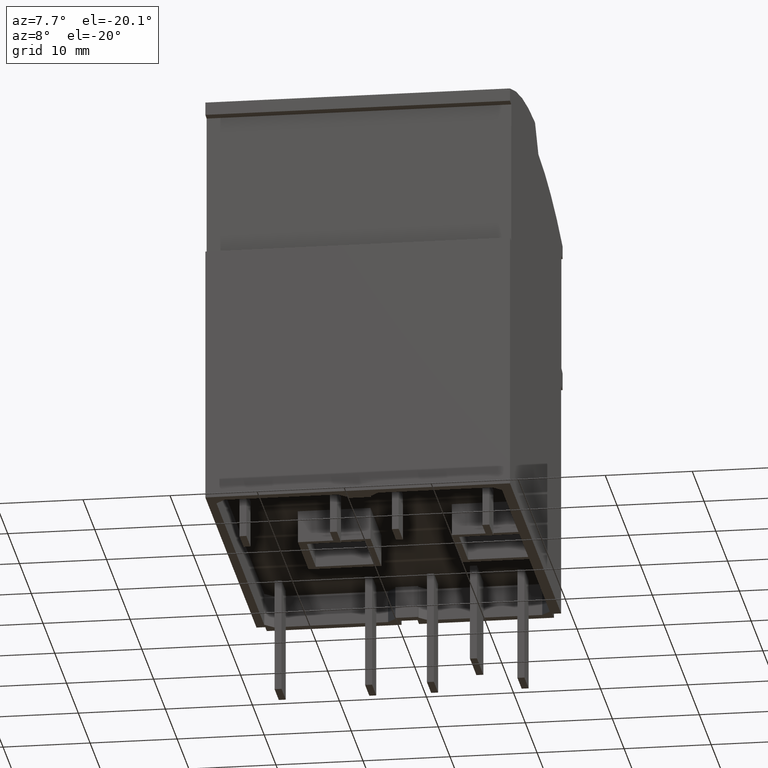
[diagram: clean part render]
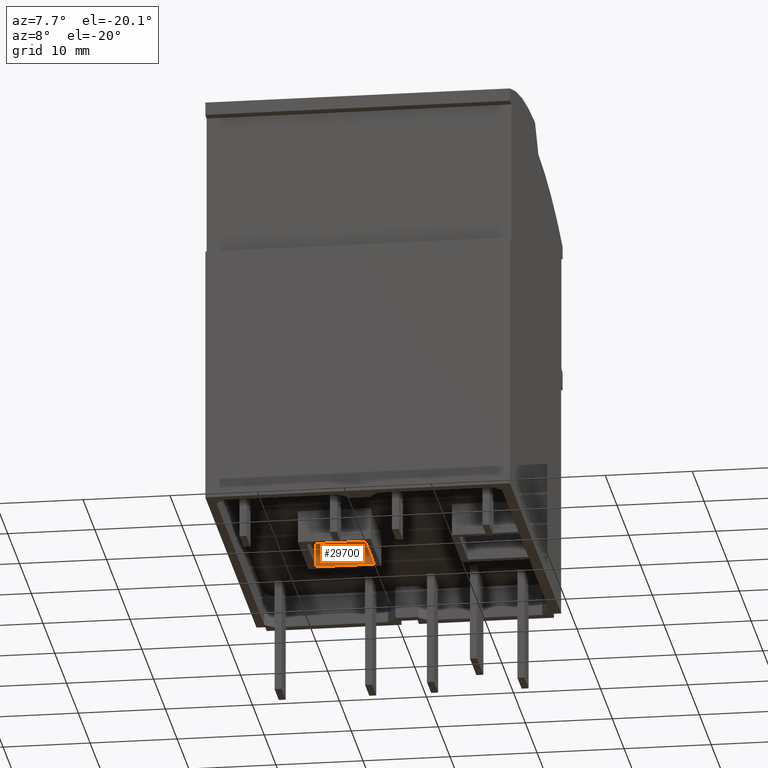
[diagram: same view with one face highlighted and labeled with its STEP entity id]
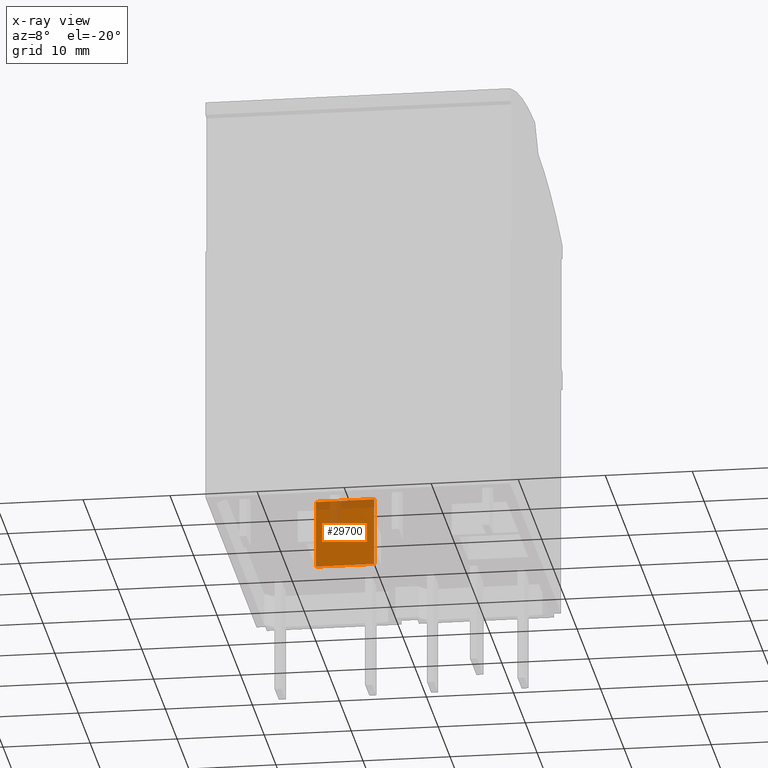
[diagram: x-ray of the same camera — body ghosted, the highlighted face saturated]
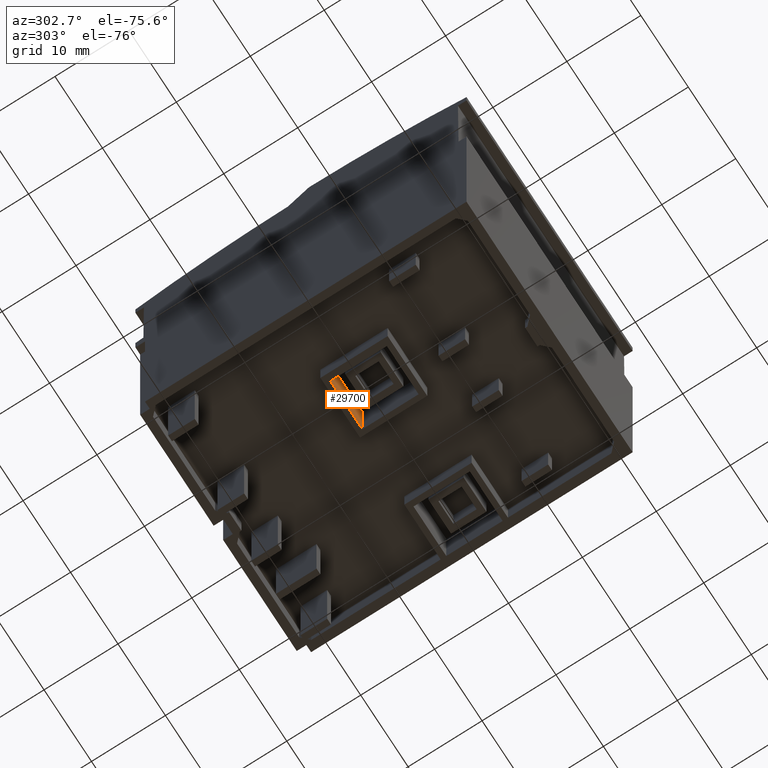
[diagram: same view with one face highlighted and labeled with its STEP entity id]
A machine part, auxiliary view. The second image highlights one B-rep face of the part: STEP entity #29700.
The next image is the same camera in x-ray: the body ghosted, the highlighted face saturated — about 22% of this face is hidden behind the body in this view.
A second angle (auxiliary view) of the same face is appended — the face is thin or edge-on in the first view.
In plain terms, the highlighted planar face has unit normal (0, -1, 0).
Its self-contained STEP definition (entity closure, byte-faithful):
#23530=CARTESIAN_POINT('',(136.582854664145,166.31959949414,
87.9123075783572));
#23540=VERTEX_POINT('',#23530);
#23590=CARTESIAN_POINT('',(136.582854664145,166.31959949414,
43.471619002019));
#23600=DIRECTION('',(-1.22476300099142E-16,9.39079584352265E-19,1.));
#23610=VECTOR('',#23600,1.);
#23620=LINE('',#23590,#23610);
#23630=CARTESIAN_POINT('',(136.582854664145,166.31959949414,
81.2022574288084));
#23640=VERTEX_POINT('',#23630);
#23650=EDGE_CURVE('',#23640,#23540,#23620,.T.);
#24970=CARTESIAN_POINT('',(136.582854664145,174.165880918266,
81.2022574288084));
#24980=VERTEX_POINT('',#24970);
#25080=CARTESIAN_POINT('',(136.582854664145,179.911397841671,
81.2022574288084));
#25090=DIRECTION('',(-1.20996962449382E-16,1.,-7.51460437040554E-19));
#25100=VECTOR('',#25090,1.);
#25110=LINE('',#25080,#25100);
#25120=EDGE_CURVE('',#23640,#24980,#25110,.T.);
#25630=CARTESIAN_POINT('',(136.582854664145,174.165880918266,
79.6021431980011));
#25640=DIRECTION('',(-1.22476300099142E-16,7.51442445056152E-19,1.));
#25650=VECTOR('',#25640,1.);
#25660=LINE('',#25630,#25650);
#25670=CARTESIAN_POINT('',(136.582854664145,174.165880918266,
87.9123075783572));
#25680=VERTEX_POINT('',#25670);
#25690=EDGE_CURVE('',#24980,#25680,#25660,.T.);
#29410=CARTESIAN_POINT('',(136.582854664145,179.911397841671,
87.9123075783572));
#29420=DIRECTION('',(1.20996962449382E-16,-1.,7.51460437040554E-19));
#29430=VECTOR('',#29420,1.);
#29440=LINE('',#29410,#29430);
#29450=EDGE_CURVE('',#25680,#23540,#29440,.T.);
#29590=CARTESIAN_POINT('',(136.582854664145,170.065880918266,
87.9123075783572));
#29600=DIRECTION('',(1.,1.20996962449382E-16,1.22476300099142E-16));
#29610=DIRECTION('',(1.22476300099142E-16,-7.51442445056147E-19,-1.));
#29620=AXIS2_PLACEMENT_3D('',#29590,#29600,#29610);
#29630=PLANE('',#29620);
#29640=ORIENTED_EDGE('',*,*,#23650,.F.);
#29650=ORIENTED_EDGE('',*,*,#29450,.T.);
#29660=ORIENTED_EDGE('',*,*,#25690,.T.);
#29670=ORIENTED_EDGE('',*,*,#25120,.T.);
#29680=EDGE_LOOP('',(#29670,#29660,#29650,#29640));
#29690=FACE_OUTER_BOUND('',#29680,.T.);
#29700=ADVANCED_FACE('',(#29690),#29630,.T.);